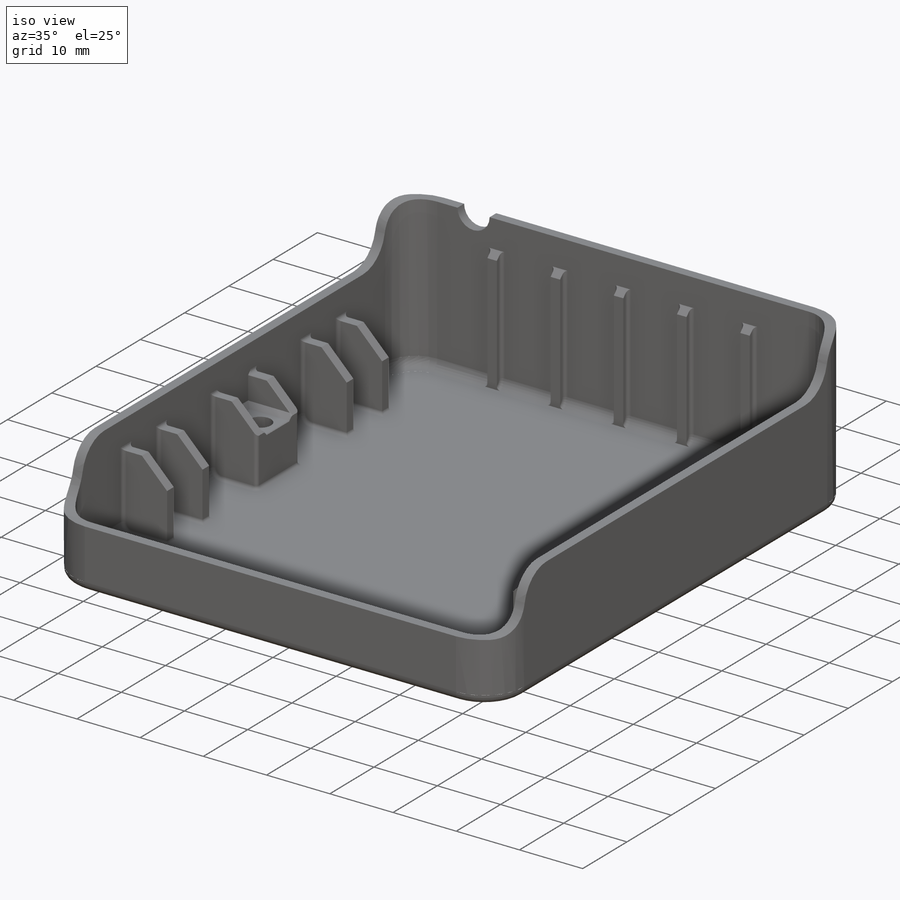
[diagram: iso view]
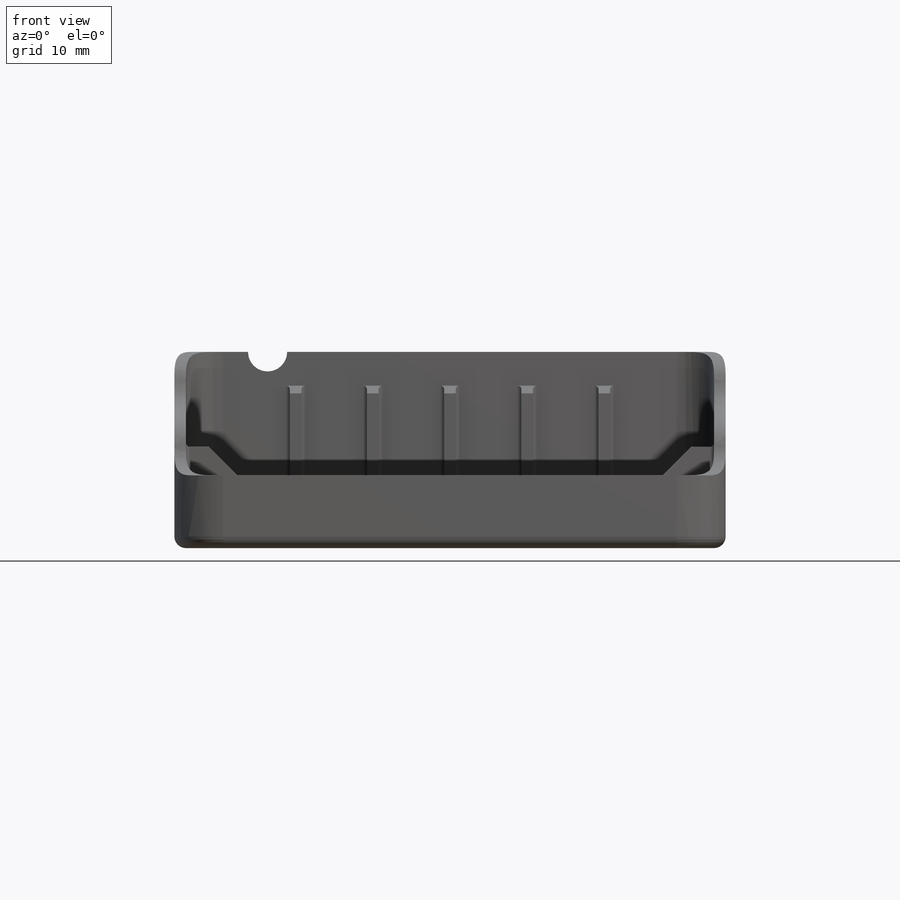
[diagram: front view]
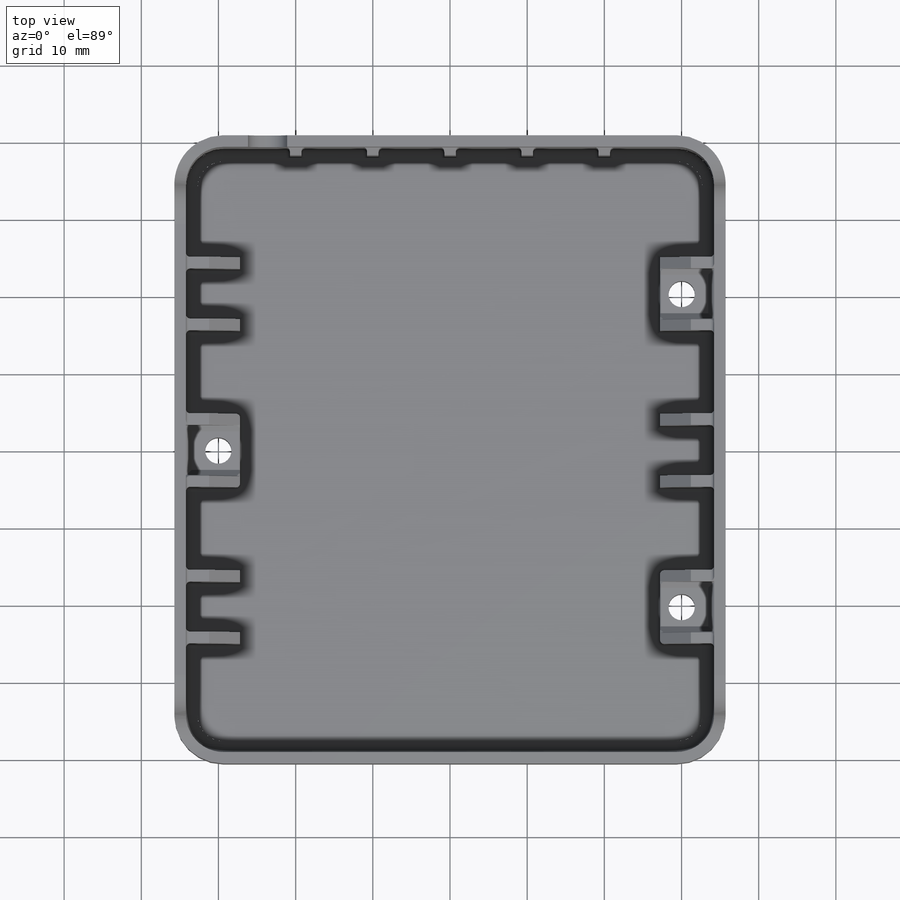
[diagram: top view]
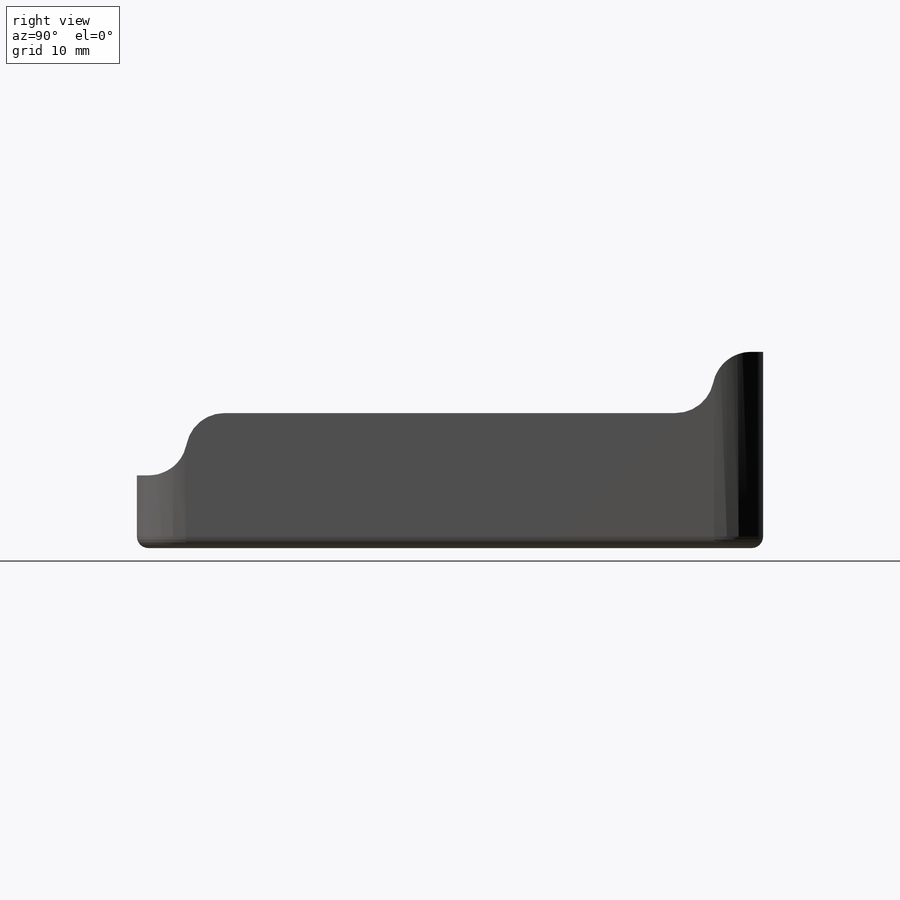
[diagram: right view]
SOLIDWORKS PART (.sldprt)
format: sldprt  version: not decoded by parser v0  size: 1,206,272 bytes
history: native  units: mm
features: sketch x13, fillet x6, extrude x5, chamfer x5, cut_extrude x4, mirror x3, plane x2, material x1, shell x1, hole x1 (+11 scaffold rows collapsed)
feature tree (52):
  scaffold x11  (default folders/planes/origin — collapsed)
  material  "Material <not specified>"
  sketch  "Sketch1"  dims[D1=71.4375mm D2=81.153mm]
  extrude  "Boss-Extrude1"  Depth=25.4277mm
  fillet  "Fillet1"  Radius=6.35mm
  fillet  "Fillet2"  Radius=1.5mm
  shell  "Shell1"  Thickness=1.5mm
  sketch  "Sketch2"  dims[D1=0.0mm]
  fillet  "Fillet3"  Radius=1.5mm
  plane  "Plane1"
  plane  "Plane2"
  sketch  "Sketch3"  dims[D2=5.08mm D1=~23.63825mm]
  cut_extrude  "Cut-Extrude1"  Depth=12.7mm
  sketch  "Sketch4"  dims[c1.D1=3.302mm c1.D2=1.5mm c1.D3=~6.99135mm c1.D4=~6.99135mm c1.D5=~20.28825mm c2.D3=~29.57335mm c2.D4=~29.57335mm c3.D3=1.0mm c3.D4=1.0mm c3.D6=~0.27275mm c4.D6=~6.99125mm c4.D7=7.0mm c4.D1=6.502mm c4.D2=1.5mm c4.D8=4.201mm c4.D4=4.201mm c4.D9=6.402mm c5.D6=4.201mm c5.D1=6.502mm]
  sketch  "Sketch8"  dims[c1.D1=1.5mm c1.D2=13.5255mm c1.D3=13.5255mm c1.D4=8.5mm c1.D5=40.5765mm c2.D2=27.051mm c2.D3=13.5255mm c3.D2=~20.28825mm c3.D3=6.502mm]
  extrude  "Boss-Extrude3"  Depth=13.125mm
  mirror  "Mirror1"
  mirror  "Mirror2"
  sketch  "Sketch13"
  extrude  "Boss-Extrude4"  Depth=13.125mm
  mirror  "Mirror3"
  extrude  "Boss-Extrude2"  Depth=8.65mm
  hole  "CSK for M3 Flat Head Machine Screw1"  Diameter=3.4mm Depth=25.4277mm
  sketch  "Sketch7"
  sketch  "Sketch6"  dims[hole-wizard template sketch: 55 standard entries collapsed; hole parameters kept: c17.Thru Hole Depth=25.4277mm c17.Near C'Sink Dia.=6.3mm c17.D4=~3.666174mm c17.Near C'Sink Angle=90.0deg]
  sketch  "Sketch10"  dims[D1=13.462mm D2=6.35mm]
  cut_extrude  "Cut-Extrude2"  Depth=3.175mm
  sketch  "Sketch11"  dims[D1=1.5mm]
  chamfer  "Chamfer2"  Distance=1.5875mm Angle=45deg
  sketch  "Sketch14"  dims[D1=0.0mm]
  cut_extrude  "Cut-Extrude3"  Depth=17.5mm
  sketch  "Sketch15"  dims[D1=0.0mm]
  cut_extrude  "Cut-Extrude4"  Depth=8.0772mm
  sketch  "Sketch16"  dims[D1=10.0mm D2=2.5mm D3=10.0mm]
  extrude  "Boss-Extrude5"  Depth=4.375mm
  chamfer  "Chamfer1"  Distance=4mm Angle=45deg
  chamfer  "Chamfer3"  Distance=1mm Angle=45deg
  fillet  "Fillet4"  Radius=5mm
  fillet  "Fillet5"  Radius=5mm
  chamfer  "Chamfer4"  Distance=0.75mm Angle=45deg
  chamfer  "Chamfer5"  Distance=0.1mm Angle=45deg
  fillet  "Fillet6"  Radius=0.5mm
decode coverage: 33 of 38 modeling features carry decoded parameters
note: ~ marks probable driven/reference dimensions
note: suppression state not decoded; provenance and decode notes live in map.json
